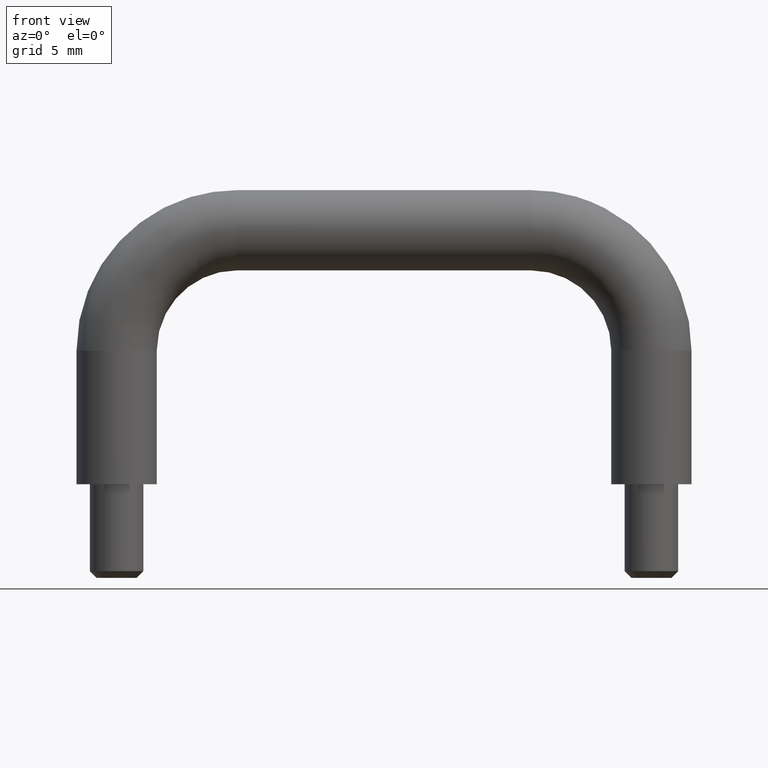
[diagram: clean part render]
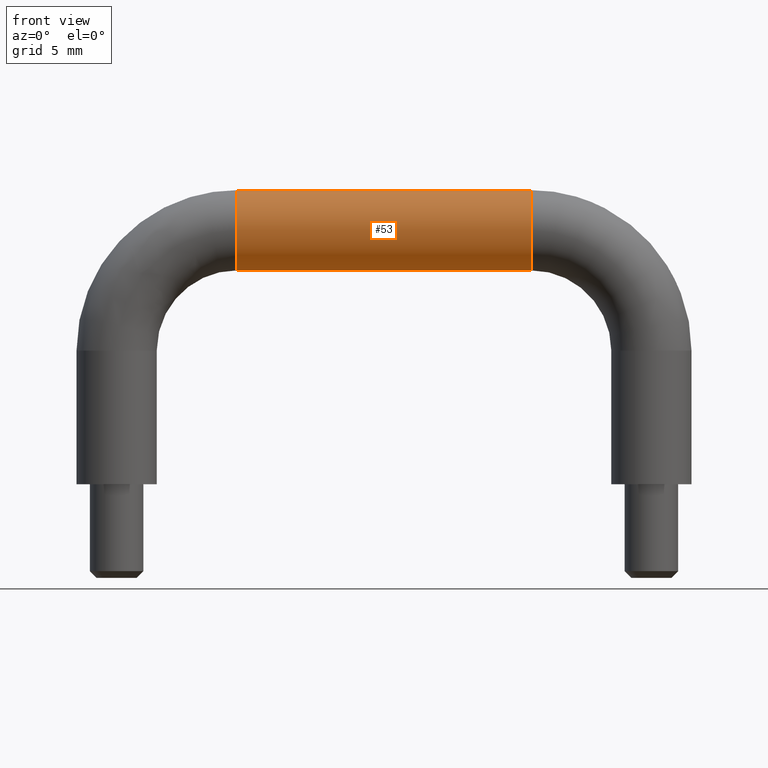
[diagram: same view with one face highlighted and labeled with its STEP entity id]
A machine part, front view. The second image highlights one B-rep face of the part: STEP entity #53.
In plain terms, the highlighted cylindrical surface (partial cylindrical patch) has radius 3 mm, axis along (-1, -0, 0).
Its self-contained STEP definition (entity closure, byte-faithful):
#53=ADVANCED_FACE('',(#195),#194,.T.);
#194=CYLINDRICAL_SURFACE('',#456,3.00000000000E+00);
#195=FACE_OUTER_BOUND('',#457,.T.);
#453=CARTESIAN_POINT('',(0.00000000000E+00,0.00000000000E+00,3.00000000000E+00));
#454=DIRECTION('',(-1.00000000000E+00,-0.00000000000E+00,0.00000000000E+00));
#455=DIRECTION('',(0.00000000000E+00,0.00000000000E+00,1.00000000000E+00));
#456=AXIS2_PLACEMENT_3D('',#453,#454,#455);
#457=EDGE_LOOP('',(#600,#601,#602,#603));
#600=ORIENTED_EDGE('',*,*,#642,.F.);
#601=ORIENTED_EDGE('',*,*,#663,.T.);
#602=ORIENTED_EDGE('',*,*,#665,.T.);
#603=ORIENTED_EDGE('',*,*,#664,.F.);
#642=EDGE_CURVE('',#720,#721,#722,.T.);
#663=EDGE_CURVE('',#720,#853,#860,.T.);
#664=EDGE_CURVE('',#721,#852,#866,.T.);
#665=EDGE_CURVE('',#853,#852,#872,.T.);
#720=VERTEX_POINT('',#984);
#721=VERTEX_POINT('',#985);
#722=CIRCLE('',#989,3.00000000000E+00);
#852=VERTEX_POINT('',#1065);
#853=VERTEX_POINT('',#1066);
#860=(BOUNDED_CURVE() B_SPLINE_CURVE(1,(#1071,#1072),.UNSPECIFIED.,.F.,.F.) B_SPLINE_CURVE_WITH_KNOTS((2,2),(8.33333328360E-02,9.16666665505E-01),.UNSPECIFIED.) CURVE() GEOMETRIC_REPRESENTATION_ITEM() RATIONAL_B_SPLINE_CURVE((1.00000000000E+00,1.00000000000E+00)) REPRESENTATION_ITEM('') );
#866=(BOUNDED_CURVE() B_SPLINE_CURVE(1,(#1073,#1074),.UNSPECIFIED.,.F.,.F.) B_SPLINE_CURVE_WITH_KNOTS((2,2),(8.33333333333E-02,9.16666666667E-01),.UNSPECIFIED.) CURVE() GEOMETRIC_REPRESENTATION_ITEM() RATIONAL_B_SPLINE_CURVE((7.50000000000E-01,7.50000000000E-01)) REPRESENTATION_ITEM('') );
#872=CIRCLE('',#1078,3.00000000000E+00);
#984=CARTESIAN_POINT('',(1.09999999999E+01,-1.48029736617E-16,6.00000000000E+00));
#985=CARTESIAN_POINT('',(1.09999999999E+01,0.00000000000E+00,0.00000000000E+00));
#986=CARTESIAN_POINT('',(1.09999999999E+01,0.00000000000E+00,3.00000000000E+00));
#987=DIRECTION('',(1.00000000000E+00,0.00000000000E+00,0.00000000000E+00));
#988=DIRECTION('',(-0.00000000000E+00,4.93432455390E-17,-1.00000000000E+00));
#989=AXIS2_PLACEMENT_3D('',#986,#987,#988);
#1065=CARTESIAN_POINT('',(-1.09999999999E+01,2.96059473233E-16,7.40148683083E-17));
#1066=CARTESIAN_POINT('',(-1.09999999999E+01,3.67381906147E-16,6.00000000000E+00));
#1071=CARTESIAN_POINT('',(1.10000000130E+01,0.00000000000E+00,6.00000000000E+00));
#1072=CARTESIAN_POINT('',(-1.09999999692E+01,0.00000000000E+00,6.00000000000E+00));
#1073=CARTESIAN_POINT('',(1.09999999999E+01,-1.48029736617E-16,1.48029736617E-16));
#1074=CARTESIAN_POINT('',(-1.09999999999E+01,-1.48029736617E-16,1.48029736617E-16));
#1075=CARTESIAN_POINT('',(-1.09999999999E+01,0.00000000000E+00,3.00000000000E+00));
#1076=DIRECTION('',(1.00000000000E+00,0.00000000000E+00,0.00000000000E+00));
#1077=DIRECTION('',(-0.00000000000E+00,-0.00000000000E+00,1.00000000000E+00));
#1078=AXIS2_PLACEMENT_3D('',#1075,#1076,#1077);